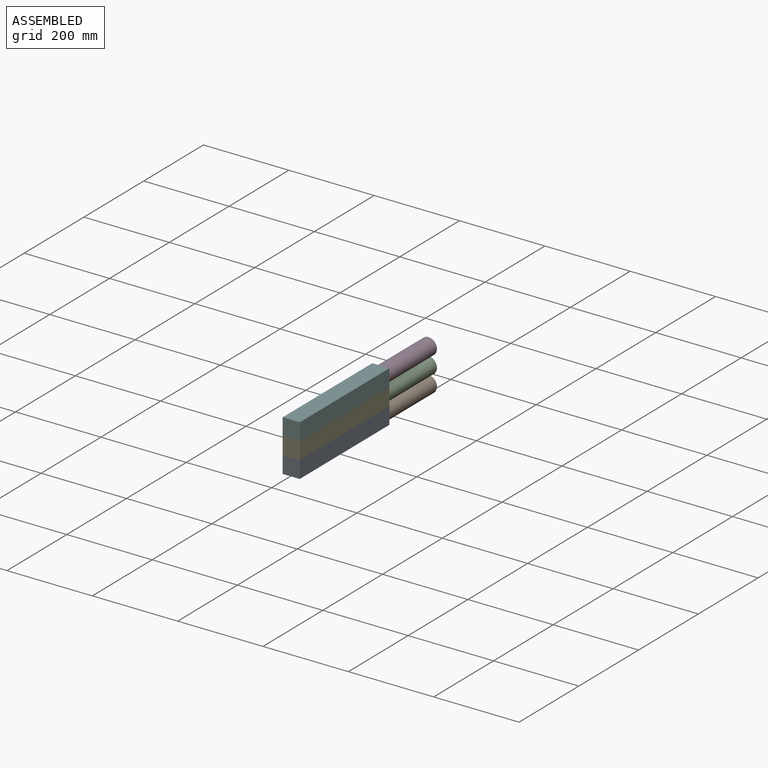
[diagram: assembled view]
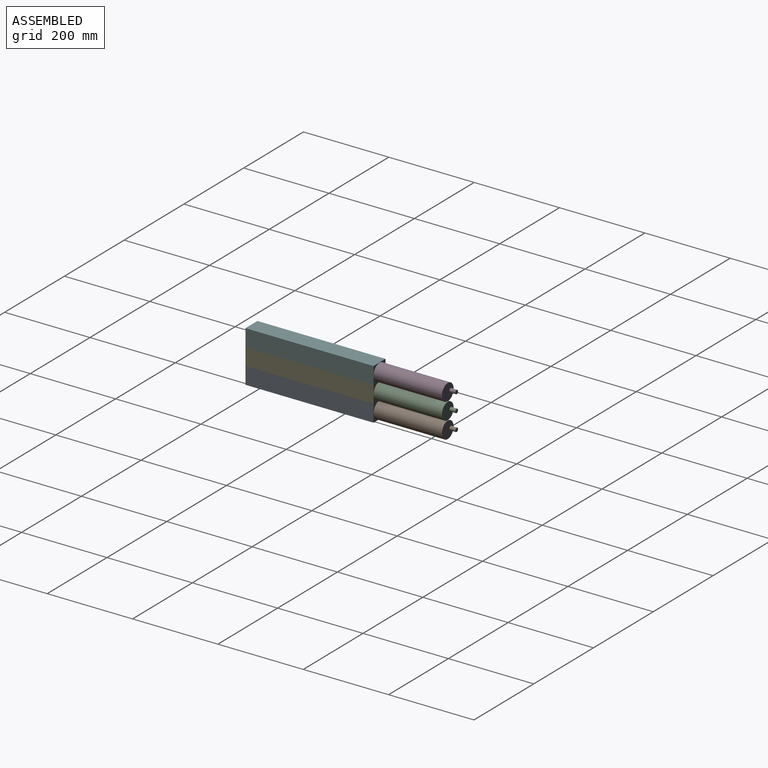
[diagram: assembled view, second angle]
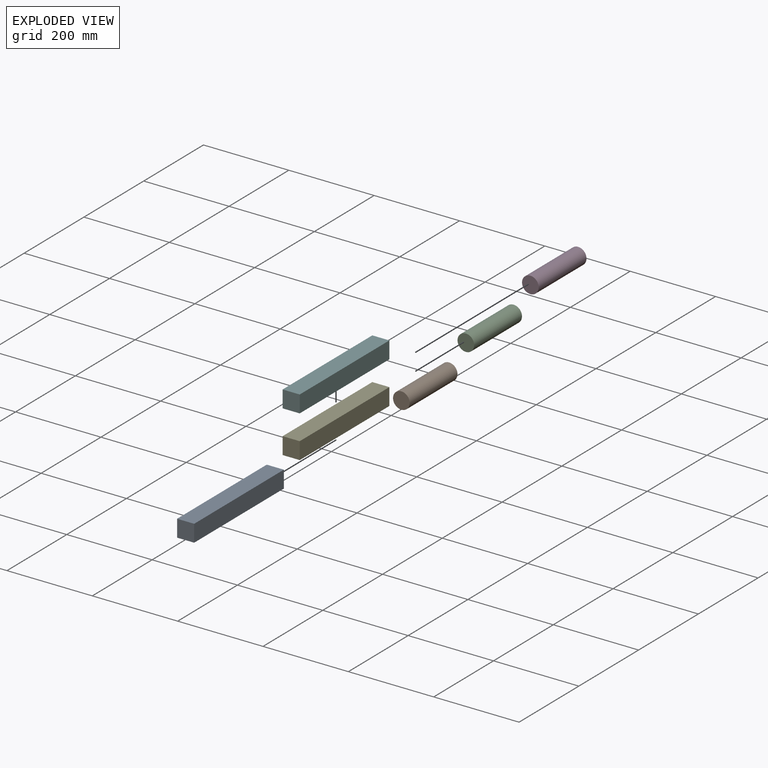
[diagram: exploded view]
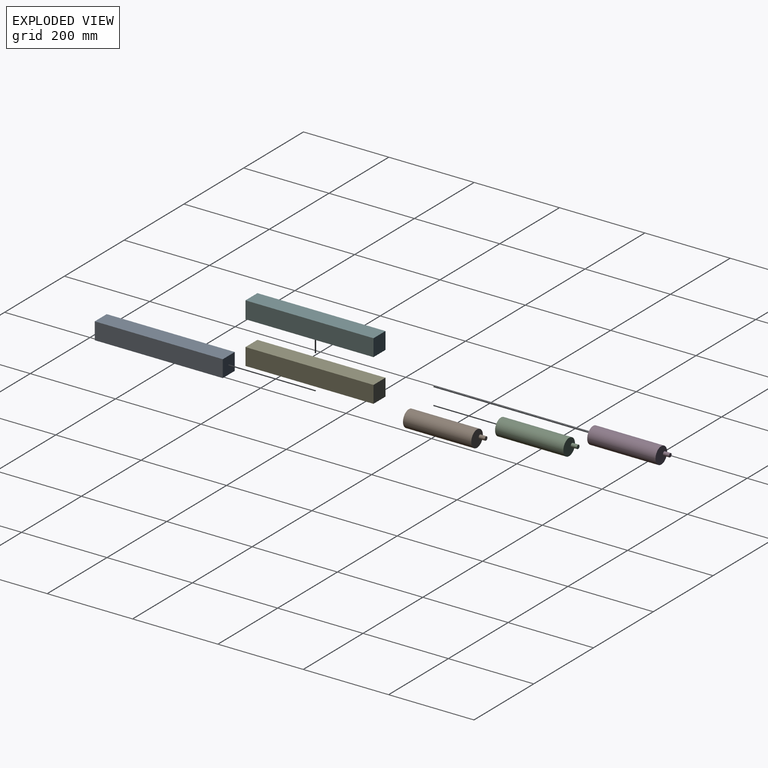
[diagram: exploded view, second angle]
ASSEMBLY  parts=6 mates=5
PART A: 6 faces, bbox 40x300x40 mm
  f0: plane 300x40mm, normal (0,0,1), area 12000mm2, adj f1,f3,f4,f5
  f1: plane 300x40mm, normal (-1,0,0), area 12000mm2, adj f0,f2,f4,f5
  f2: plane 300x40mm, normal (0,0,-1), area 12000mm2, adj f1,f3,f4,f5
  f3: plane 300x40mm, normal (1,0,0), area 12000mm2, adj f0,f2,f4,f5
  f4: plane 40x40mm, normal (0,-1,0), area 1600mm2, adj f0,f1,f2,f3
  f5: plane 40x40mm, normal (0,1,0), area 1600mm2, adj f0,f1,f2,f3
PART B: 5 faces, bbox 39x174x39 mm
  f0: cylinder r=19.5mm len=160mm, axis (0,-1,0), area 19603.5mm2, adj f1,f2
  f1: plane 39x39mm, normal (0,1,0), area 1131mm2, adj f0,f3
  f2: plane 39x39mm, normal (0,-1,0), area 1194.6mm2, adj f0
  f3: cylinder r=4.5mm len=14mm, axis (0,-1,0), area 395.8mm2, adj f1,f4
  f4: plane 9x9mm, normal (0,1,0), area 63.6mm2, adj f3
PART C: same geometry as B
PART D: same geometry as B
PART E: same geometry as A
PART F: same geometry as A
PLACE A t=(40.93,107.12,-55.42)mm
PLACE B t=(40.93,107.12,-55.42)mm
PLACE C t=(40.93,107.12,-15.42)mm
PLACE D t=(40.93,107.12,24.58)mm
PLACE E t=(40.93,107.12,-15.42)mm
PLACE F t=(40.93,107.12,24.58)mm
MATE fastened F.f2 <-> E.f0  axis (0,0,-1) through (40.93,-192.88,4.58)mm
MATE fastened A.f0 <-> E.f2  axis (0,0,1) through (40.93,-42.88,-35.42)mm
MATE fastened C.f0 <-> E.f5  axis (0,-1,0) through (40.93,107.12,-15.42)mm
MATE fastened D.f0 <-> F.f5  axis (0,-1,0) through (40.93,107.12,24.58)mm
MATE fastened B.f0 <-> A.f5  axis (0,-1,0) through (40.93,107.12,-55.42)mm
